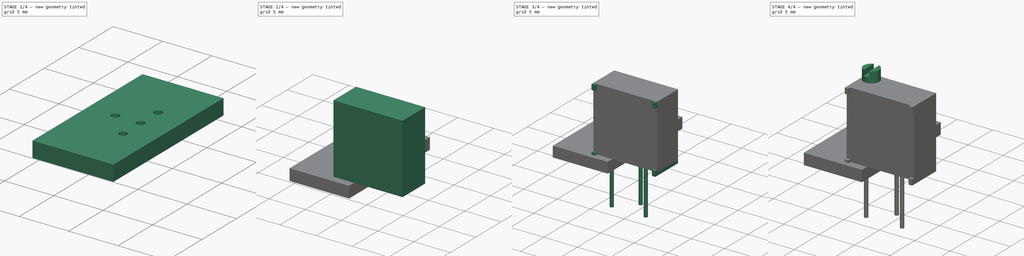
[diagram: build sequence overview — one tinted view per stage of 4, left to right]
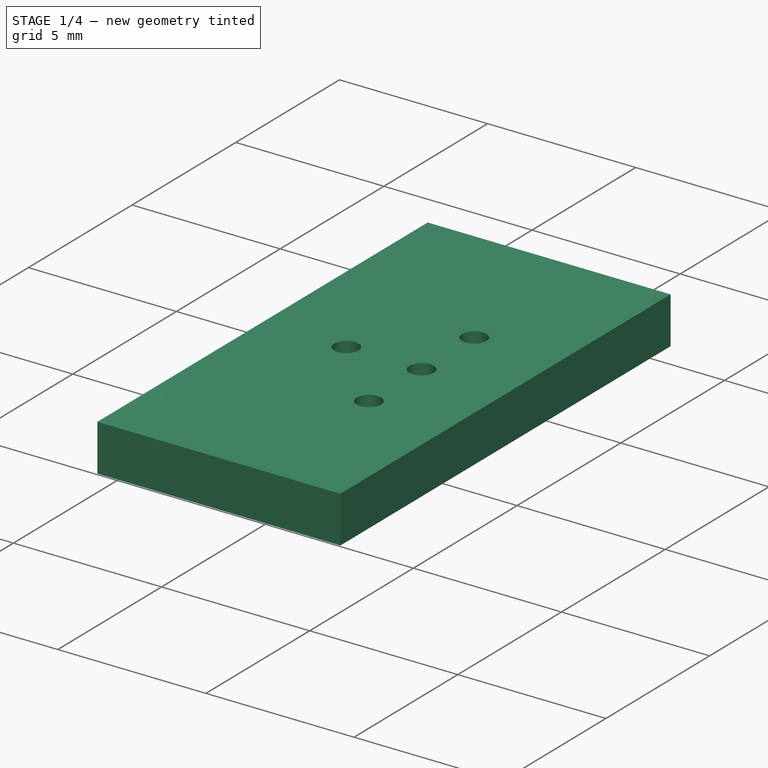
[diagram: stage 1 of 4 — iso view after this stage's code; geometry added in this stage tinted green]
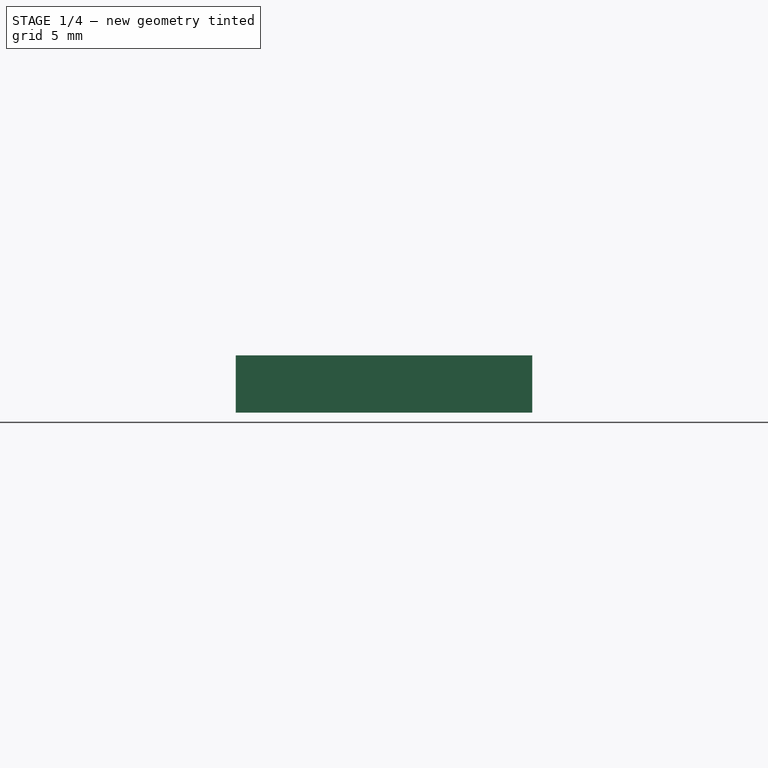
[diagram: stage 1 of 4 — front view after this stage's code; geometry added in this stage tinted green]
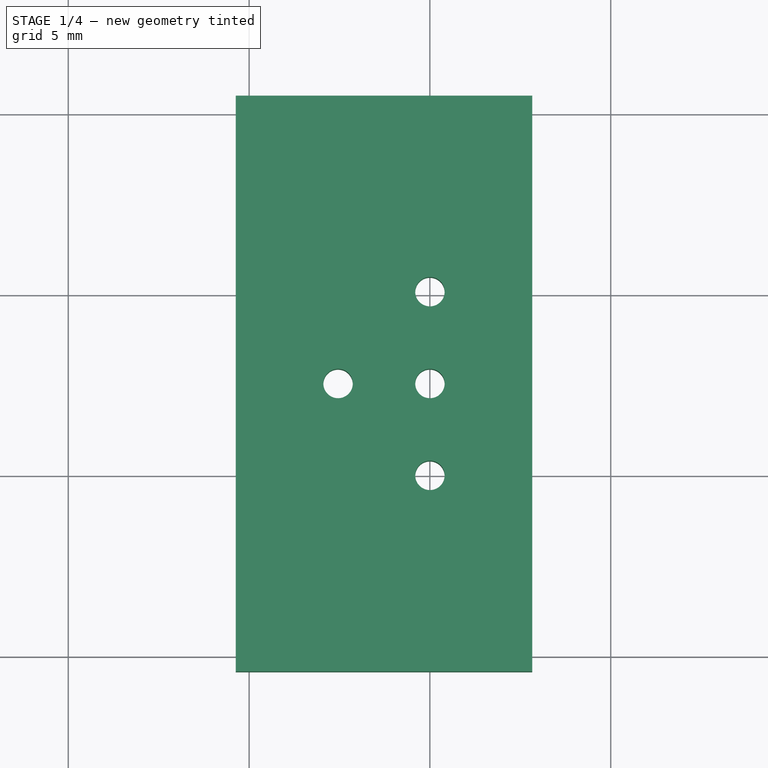
[diagram: stage 1 of 4 — top view after this stage's code; geometry added in this stage tinted green]
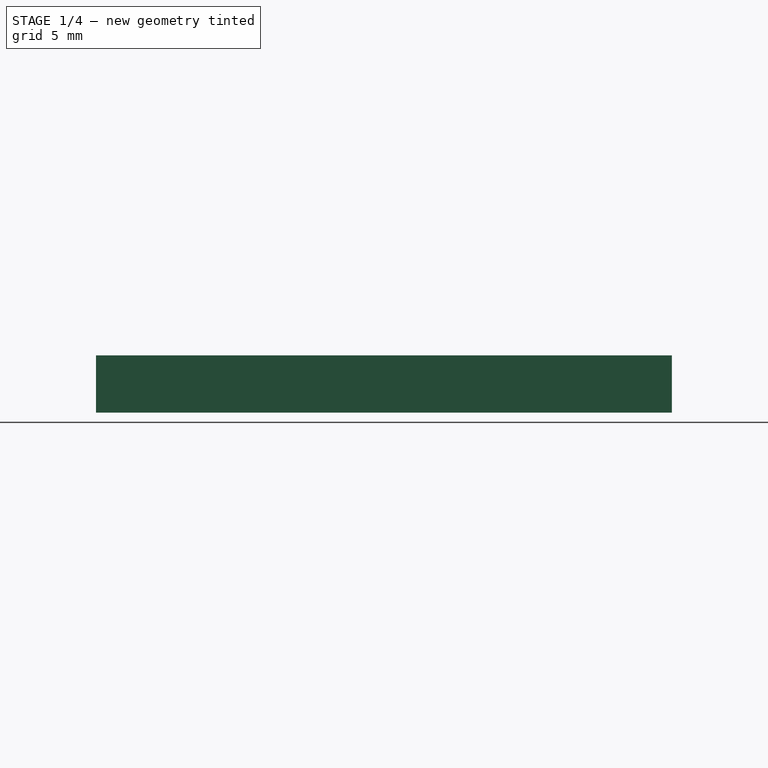
[diagram: stage 1 of 4 — right view after this stage's code; geometry added in this stage tinted green]
FCSTD DOCUMENT  (FreeCAD 0.17R13522 (Git))
Label: BOURNS-3296Y_color_ksu
License: All rights reserved
LicenseURL: http://fr.wikipedia.org/wiki/<copyright redacted>
objects: Sketcher::SketchObject×5, Part::FeaturePython×5, PartDesign::Pad×4, PartDesign::Body×2, PartDesign::Pocket×1, Part::MultiFuse×1, App::DocumentObjectGroup×1, Part::Feature×1
note: 24 computed .brp shape members not serialized (recipe doc carries the construction recipe); baked Part::Feature solids carry a one-line shape summary decoded from their .brp

FEATURE [Part::FeaturePython] THPs  label="PTHs"  # a2plus imported part (geometry in sourceFile) (typed FeaturePython)
  Placement = pos=(0,0,0) rot=(0,0,1;3.14159rad)
  fixedPosition = true
FEATURE [Part::FeaturePython] newPCB  label="Pcb"  # a2plus imported part (geometry in sourceFile) (typed FeaturePython)
  Placement = pos=(0,0,0) rot=(0,0,1;3.14159rad)
  fixedPosition = true
FEATURE [App::DocumentObjectGroup] RVAR_BOURNS_3296Y_fp
  Group = -> [Filk_lines,TopPads,BotPads,THPs,newPCB]
FEATURE [Part::Feature] Shape001  label="Clone"
  shape: bbox 4.83 x 9.53 x 17.91 mm, 51 faces, 2 solids (baked)
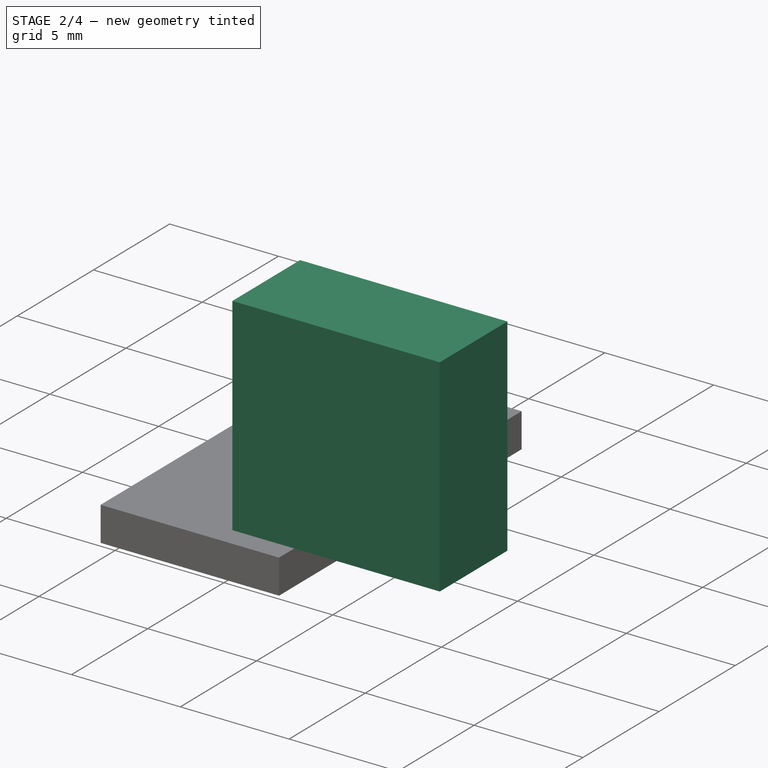
[diagram: stage 2 of 4 — iso view after this stage's code; geometry added in this stage tinted green]
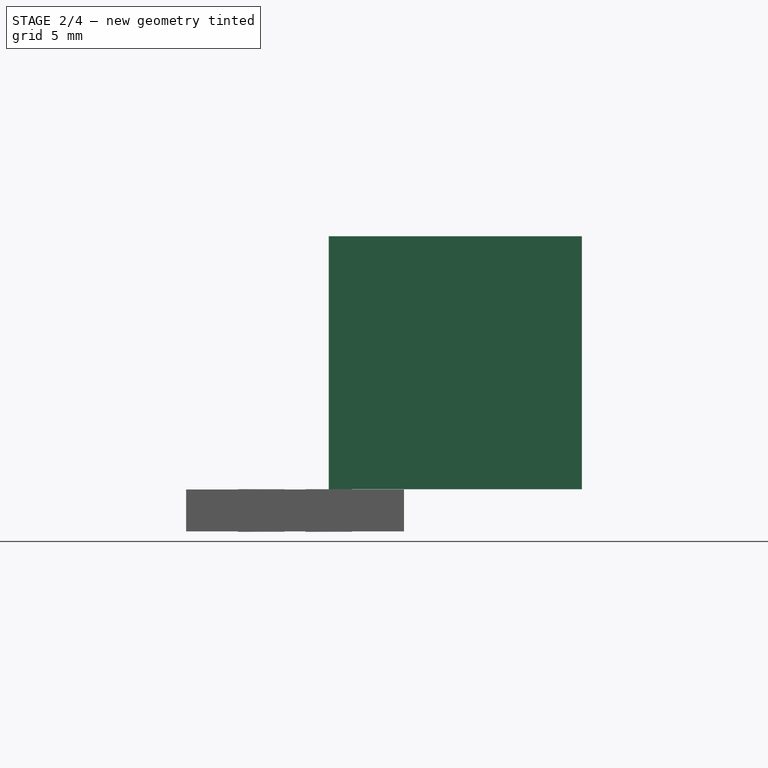
[diagram: stage 2 of 4 — front view after this stage's code; geometry added in this stage tinted green]
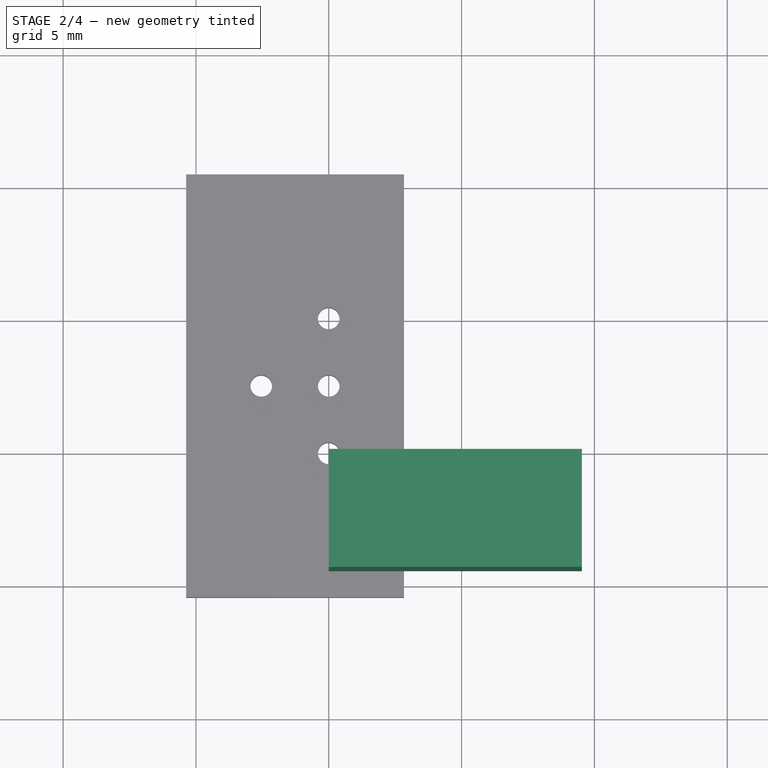
[diagram: stage 2 of 4 — top view after this stage's code; geometry added in this stage tinted green]
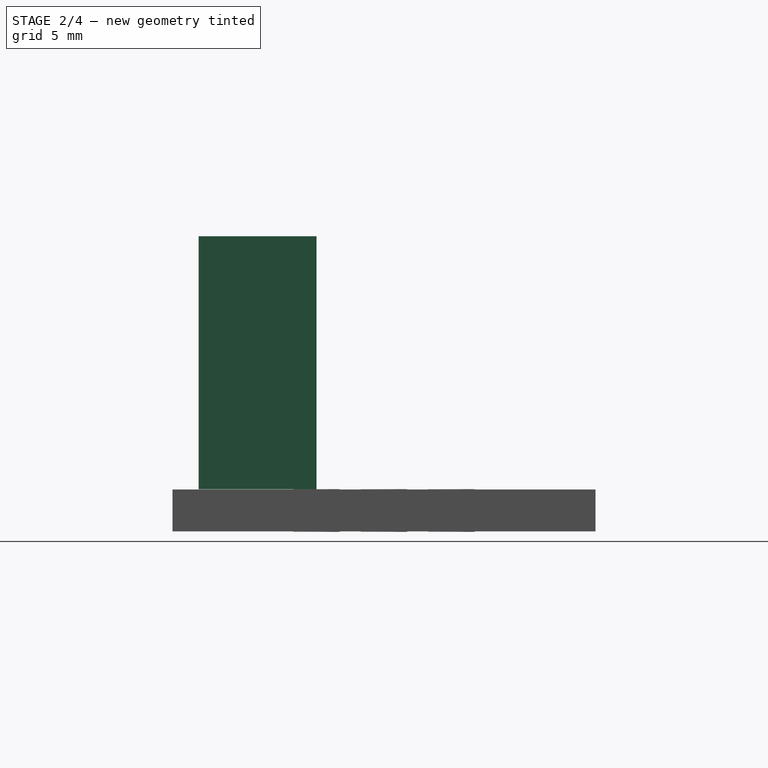
[diagram: stage 2 of 4 — right view after this stage's code; geometry added in this stage tinted green]
FEATURE [Sketcher::SketchObject] Sketch
  MapMode = 5
  Placement = pos=(0,0,0) rot=(1,0,0;1.5708rad)
  Support = -> [XZ_Plane]
  sketch-geometry (4):
    g0: LineSegment StartX=0 StartY=0 StartZ=0 EndX=9.53 EndY=0 EndZ=0
    g1: LineSegment StartX=9.53 StartY=0 StartZ=0 EndX=9.53 EndY=9.52 EndZ=0
    g2: LineSegment StartX=9.53 StartY=9.52 StartZ=0 EndX=0 EndY=9.52 EndZ=0
    g3: LineSegment StartX=0 StartY=9.52 StartZ=0 EndX=0 EndY=0 EndZ=0
  constraints (11):
    c: Coincident(g0,g1)
    c: Coincident(g1,g2)
    c: Coincident(g2,g3)
    c: Coincident(g3,g0)
    c: Horizontal(g0)
    c: Horizontal(g2)
    c: Vertical(g1)
    c: Vertical(g3)
    c: Coincident(g0,g-1)
    c: DistanceX(g2,g2) = 9.53
    c: DistanceY(g3,g3) = 9.52
FEATURE [PartDesign::Pad] Pad
  Length = 4.44
  Length2 = 100
  Placement = pos=(0,0,0) rot=(1,0,0;1.5708rad)
  Profile = -> Sketch
  Type = 0
FEATURE [Part::FeaturePython] Filk_lines  label="FrontSilk"  # a2plus imported part (geometry in sourceFile) (typed FeaturePython)
  Placement = pos=(0,0,0) rot=(0,0,1;3.14159rad)
  fixedPosition = true
FEATURE [Part::FeaturePython] TopPads  # a2plus imported part (geometry in sourceFile) (typed FeaturePython)
  Placement = pos=(0,0,0) rot=(0,0,1;3.14159rad)
  fixedPosition = true
FEATURE [Part::FeaturePython] BotPads  # a2plus imported part (geometry in sourceFile) (typed FeaturePython)
  Placement = pos=(0,0,0) rot=(0,0,1;3.14159rad)
  fixedPosition = true
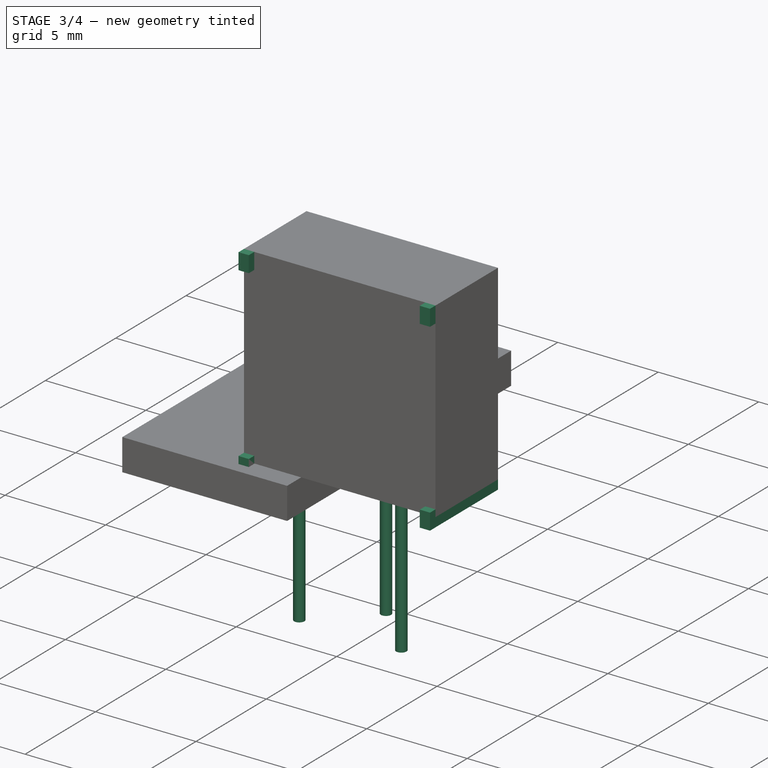
[diagram: stage 3 of 4 — iso view after this stage's code; geometry added in this stage tinted green]
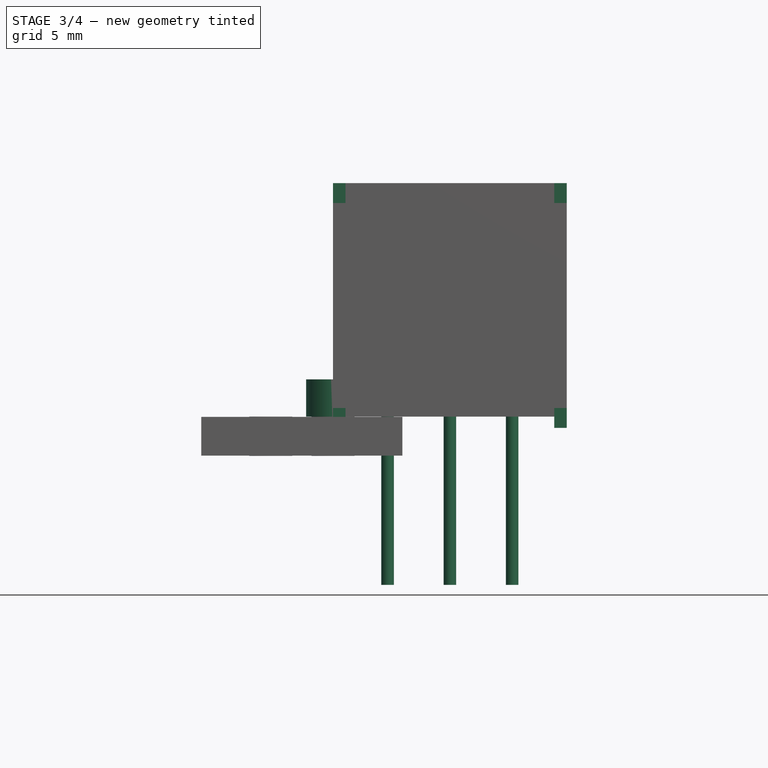
[diagram: stage 3 of 4 — front view after this stage's code; geometry added in this stage tinted green]
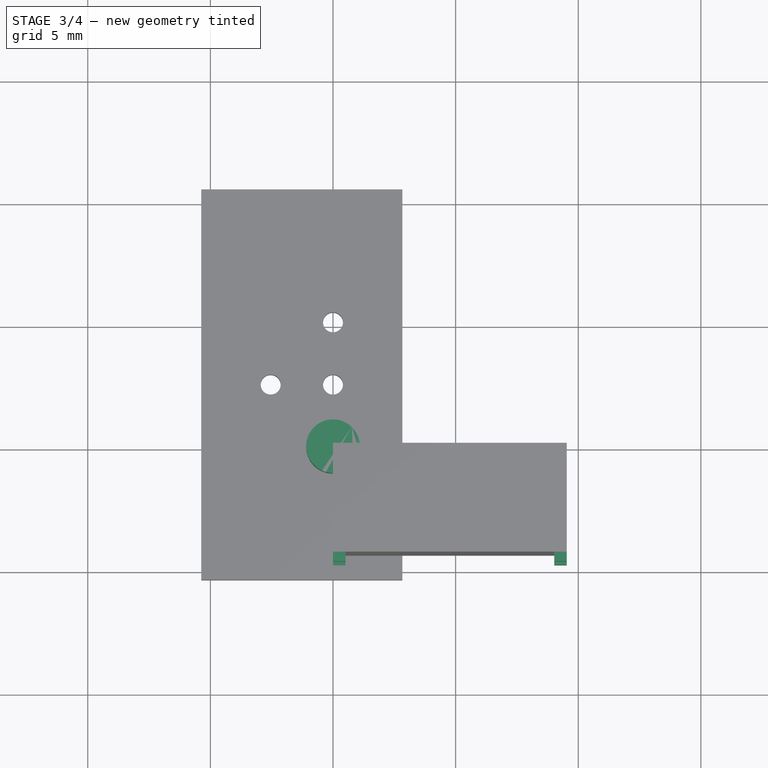
[diagram: stage 3 of 4 — top view after this stage's code; geometry added in this stage tinted green]
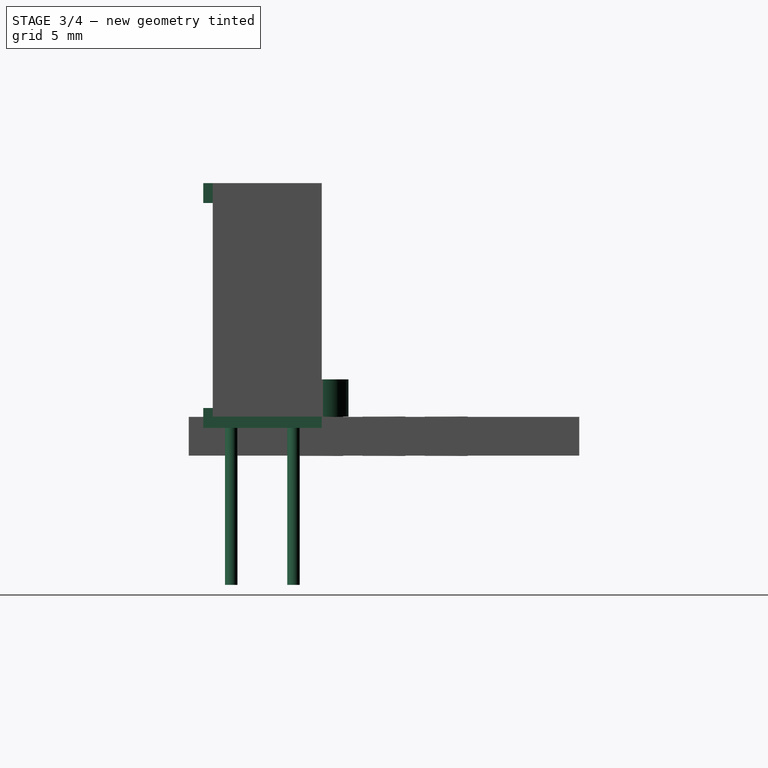
[diagram: stage 3 of 4 — right view after this stage's code; geometry added in this stage tinted green]
FEATURE [Sketcher::SketchObject] Sketch001
  MapMode = 5
  Placement = pos=(0,0,0) rot=(1,0,0;1.5708rad)
  Support = -> [XZ_Plane]
  sketch-geometry (16):
    g0: LineSegment StartX=0 StartY=9.52 StartZ=0 EndX=0.51 EndY=9.52 EndZ=0
    g1: LineSegment StartX=0.51 StartY=9.52 StartZ=0 EndX=0.51 EndY=8.71 EndZ=0
    g2: LineSegment StartX=0.51 StartY=8.71 StartZ=0 EndX=0 EndY=8.71 EndZ=0
    g3: LineSegment StartX=0 StartY=8.71 StartZ=0 EndX=0 EndY=9.52 EndZ=0
    g4: LineSegment StartX=9.02 StartY=9.52 StartZ=0 EndX=9.53 EndY=9.52 EndZ=0
    g5: LineSegment StartX=9.53 StartY=9.52 StartZ=0 EndX=9.53 EndY=8.71 EndZ=0
    g6: LineSegment StartX=9.53 StartY=8.71 StartZ=0 EndX=9.02 EndY=8.71 EndZ=0
    g7: LineSegment StartX=9.02 StartY=8.71 StartZ=0 EndX=9.02 EndY=9.52 EndZ=0
    g8: LineSegment StartX=9.02 StartY=0.35 StartZ=0 EndX=9.53 EndY=0.35 EndZ=0
    g9: LineSegment StartX=9.53 StartY=0.35 StartZ=0 EndX=9.53 EndY=-0.46 EndZ=0
    g10: LineSegment StartX=9.53 StartY=-0.46 StartZ=0 EndX=9.02 EndY=-0.46 EndZ=0
    g11: LineSegment StartX=9.02 StartY=-0.46 StartZ=0 EndX=9.02 EndY=0.35 EndZ=0
    g12: LineSegment StartX=0 StartY=0.35 StartZ=0 EndX=0.51 EndY=0.35 EndZ=0
    g13: LineSegment StartX=0.51 StartY=0.35 StartZ=0 EndX=0.51 EndY=-0.46 EndZ=0
    g14: LineSegment StartX=0.51 StartY=-0.46 StartZ=0 EndX=0 EndY=-0.46 EndZ=0
    g15: LineSegment StartX=0 StartY=-0.46 StartZ=0 EndX=0 EndY=0.35 EndZ=0
  constraints (48):
    c: Coincident(g0,g1)
    c: Coincident(g1,g2)
    c: Coincident(g2,g3)
    c: Coincident(g3,g0)
    c: Horizontal(g0)
    c: Horizontal(g2)
    c: Vertical(g1)
    c: Vertical(g3)
    c: Coincident(g4,g5)
    c: Coincident(g5,g6)
    c: Coincident(g6,g7)
    c: Coincident(g7,g4)
    c: Horizontal(g4)
    c: Horizontal(g6)
    c: Vertical(g5)
    c: Vertical(g7)
    c: Coincident(g8,g9)
    c: Coincident(g9,g10)
    c: Coincident(g10,g11)
    c: Coincident(g11,g8)
    c: Horizontal(g8)
    c: Horizontal(g10)
    c: Vertical(g9)
    c: Vertical(g11)
    c: Coincident(g12,g13)
    c: Coincident(g13,g14)
    c: Coincident(g14,g15)
    c: Coincident(g15,g12)
    c: Horizontal(g12)
    c: Horizontal(g14)
    c: Vertical(g13)
    c: Vertical(g15)
    c: DistanceY(g15,g15) = 0.81
    c: DistanceX(g14,g14) = 0.51
    c: PointOnObject(g12,g-2)
    c: DistanceY(g13,g-1) = 0.46
    c: Tangent(g10,g14) = -1.5708
    c: Tangent(g8,g12) = -1.5708
    c: DistanceX(g14,g9) = 9.53
    c: Equal(g10,g14)
    c: PointOnObject(g2,g-2)
    c: DistanceY(g1,g1) = 0.81
    c: Tangent(g1,g13) = -1.5708
    c: DistanceY(g-1,g0) = 9.52
    c: Equal(g6,g10)
    c: Equal(g1,g7)
    c: Tangent(g4,g0) = -1.5708
    c: Tangent(g5,g9) = -1.5708
FEATURE [PartDesign::Pad] Pad001
  BaseFeature = -> Pad
  Length = 4.83
  Length2 = 100
  Placement = pos=(0,0,0) rot=(1,0,0;1.5708rad)
  Profile = -> Sketch001
  Type = 0
FEATURE [Sketcher::SketchObject] Sketch002
  MapMode = 5
  Support = -> [XY_Plane001]
  expr: Constraints[1] = 2.1899999999999999 / 2
  sketch-geometry (1):
    g0: Circle CenterX=0 CenterY=0 CenterZ=0 NormalX=0 NormalY=0 NormalZ=1 AngleXU=0 Radius=1.095
  constraints (2):
    c: Coincident(g0,g-1)
    c: Radius(g0) = 1.095
FEATURE [PartDesign::Pad] Pad002
  Length = 1.52
  Length2 = 100
  Profile = -> Sketch002
  Type = 0
FEATURE [PartDesign::Body] Body001
  Group = -> [Sketch002,Pad002,Sketch003,Pocket]
  Origin = -> Origin001
  Placement = pos=(1.27,-1.27,9.53) rot=(0,0,1;1.5708rad)
  Tip = -> Pocket
FEATURE [Sketcher::SketchObject] Sketch004
  MapMode = 5
  Placement = pos=(0,0,0) rot=(1,0,0;3.14159rad)
  Support = -> [Pad001]
  expr: Constraints[6] = 0.51000000000000001 / 2
  expr: Constraints[5] = 9.5299999999999994 / 2
  expr: Constraints[0] = 4.8300000000000001 - 1.1400000000000001
  sketch-geometry (3):
    g0: Circle CenterX=2.225 CenterY=3.69 CenterZ=0 NormalX=0 NormalY=0 NormalZ=1 AngleXU=0 Radius=0.255
    g1: Circle CenterX=4.765 CenterY=1.15 CenterZ=0 NormalX=0 NormalY=0 NormalZ=1 AngleXU=0 Radius=0.255
    g2: Circle CenterX=7.305 CenterY=3.69 CenterZ=0 NormalX=0 NormalY=0 NormalZ=1 AngleXU=0 Radius=0.255
  constraints (9):
    c: DistanceY(g-1,g0) = 3.69
    c: DistanceY(g0,g1) = -2.54
    c: DistanceY(g0,g2) = 0
    c: DistanceX(g0,g1) = 2.54
    c: DistanceX(g1,g2) = 2.54
    c: DistanceX(g-1,g1) = 4.765
    c: Radius(g0) = 0.255
    c: Equal(g1,g0)
    c: Equal(g2,g0)
FEATURE [PartDesign::Pad] Pad003
  BaseFeature = -> Pad001
  Length = 6.86
  Length2 = 100
  Placement = pos=(0,0,0) rot=(1,0,0;1.5708rad)
  Profile = -> Sketch004
  Type = 0
  expr: Length = 6.4000000000000004 + 0.46000000000000002
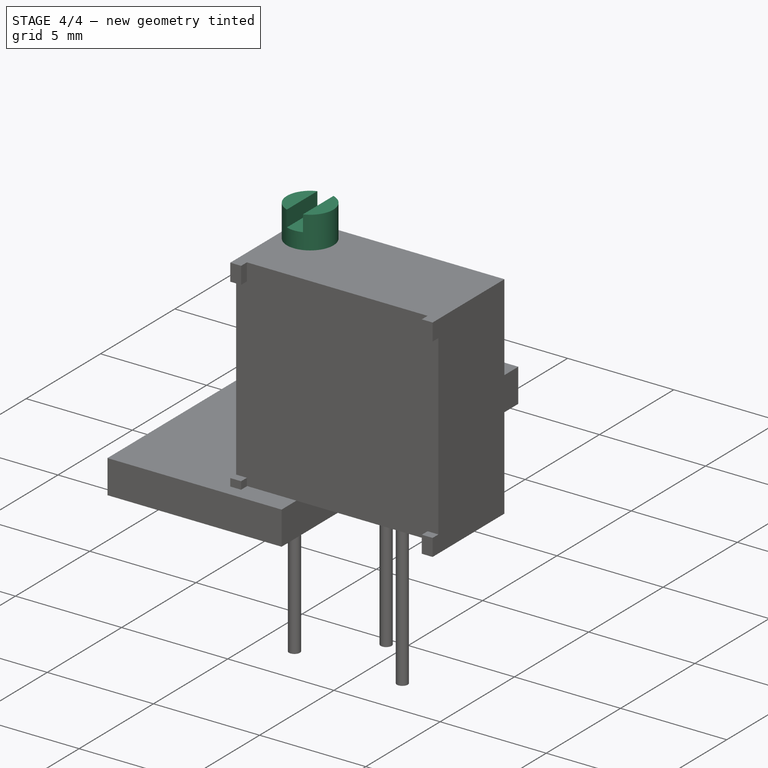
[diagram: stage 4 of 4 — iso view after this stage's code; geometry added in this stage tinted green]
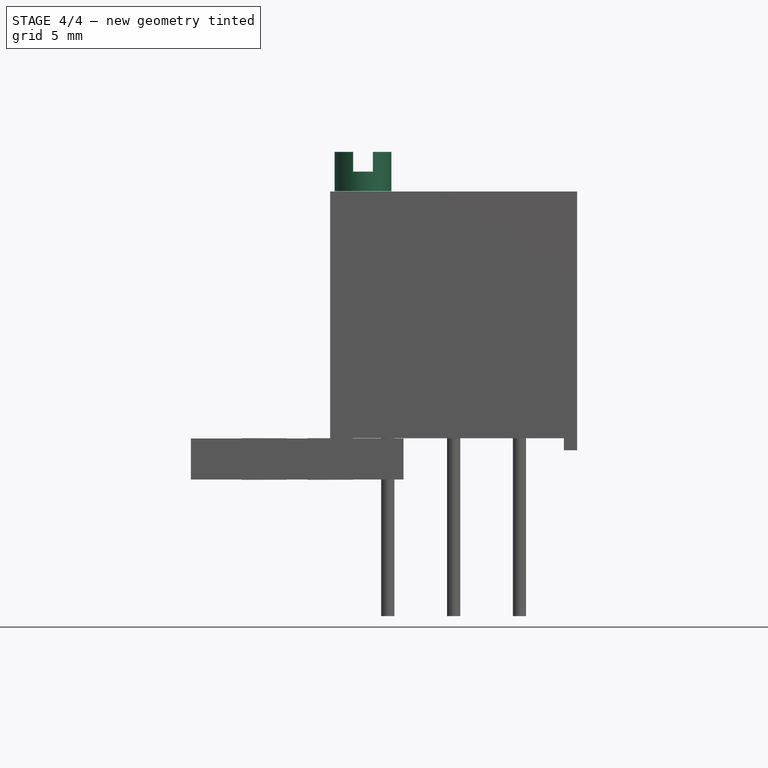
[diagram: stage 4 of 4 — front view after this stage's code; geometry added in this stage tinted green]
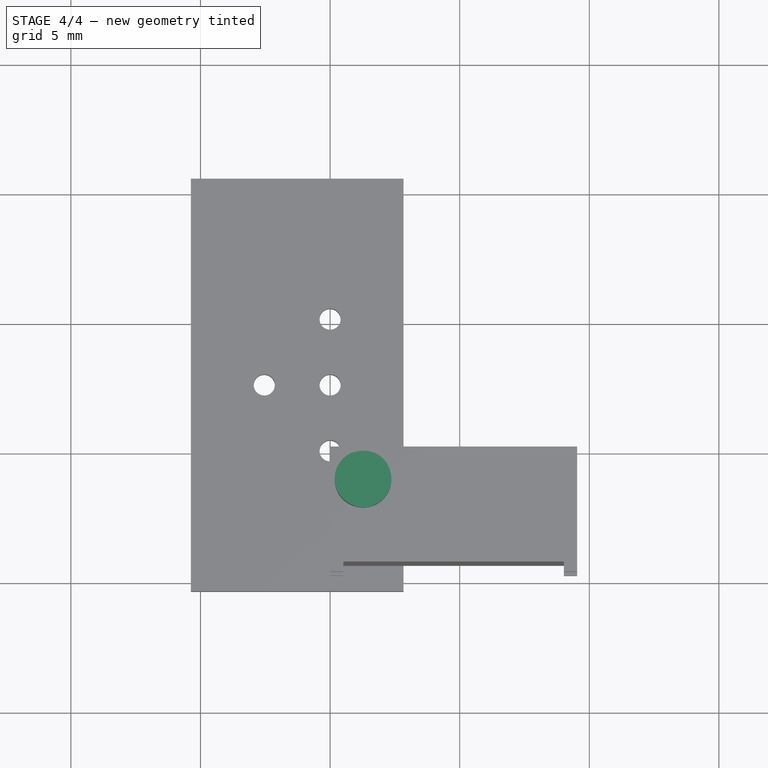
[diagram: stage 4 of 4 — top view after this stage's code; geometry added in this stage tinted green]
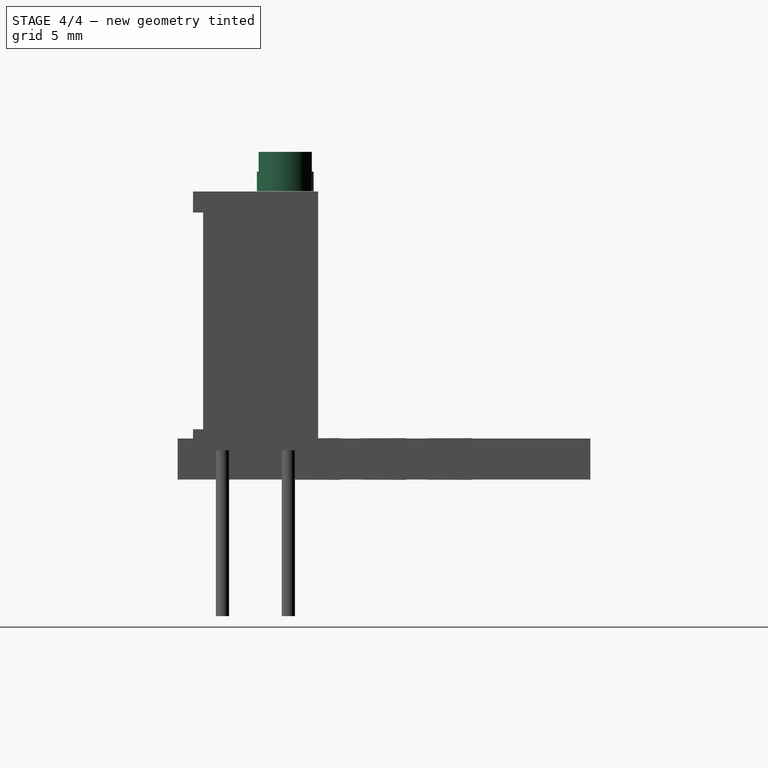
[diagram: stage 4 of 4 — right view after this stage's code; geometry added in this stage tinted green]
FEATURE [Sketcher::SketchObject] Sketch003
  MapMode = 5
  Placement = pos=(0,0,1.52) rot=(0,0,1;0rad)
  Support = -> [Pad002]
  sketch-geometry (4):
    g0: LineSegment StartX=-1.5 StartY=0.38 StartZ=0 EndX=1.5 EndY=0.38 EndZ=0
    g1: LineSegment StartX=1.5 StartY=0.38 StartZ=0 EndX=1.5 EndY=-0.38 EndZ=0
    g2: LineSegment StartX=1.5 StartY=-0.38 StartZ=0 EndX=-1.5 EndY=-0.38 EndZ=0
    g3: LineSegment StartX=-1.5 StartY=-0.38 StartZ=0 EndX=-1.5 EndY=0.38 EndZ=0
  constraints (12):
    c: Coincident(g0,g1)
    c: Coincident(g1,g2)
    c: Coincident(g2,g3)
    c: Coincident(g3,g0)
    c: Horizontal(g0)
    c: Horizontal(g2)
    c: Vertical(g1)
    c: Vertical(g3)
    c: DistanceY(g1,g1) = 0.76
    c: Symmetric(g0,g1,g-1)
    c: Symmetric(g0,g0,g-2)
    c: DistanceX(g0,g0) = 3
FEATURE [PartDesign::Pocket] Pocket
  BaseFeature = -> Pad002
  Length = 0.76
  Length2 = 100
  Profile = -> Sketch003
  Type = 0
FEATURE [PartDesign::Body] Body
  Group = -> [Sketch,Pad,Sketch001,Pad001,Sketch004,Pad003]
  Origin = -> Origin
  Tip = -> Pad003
FEATURE [Part::MultiFuse] Fusion
  Shapes = -> [Body,Body001]
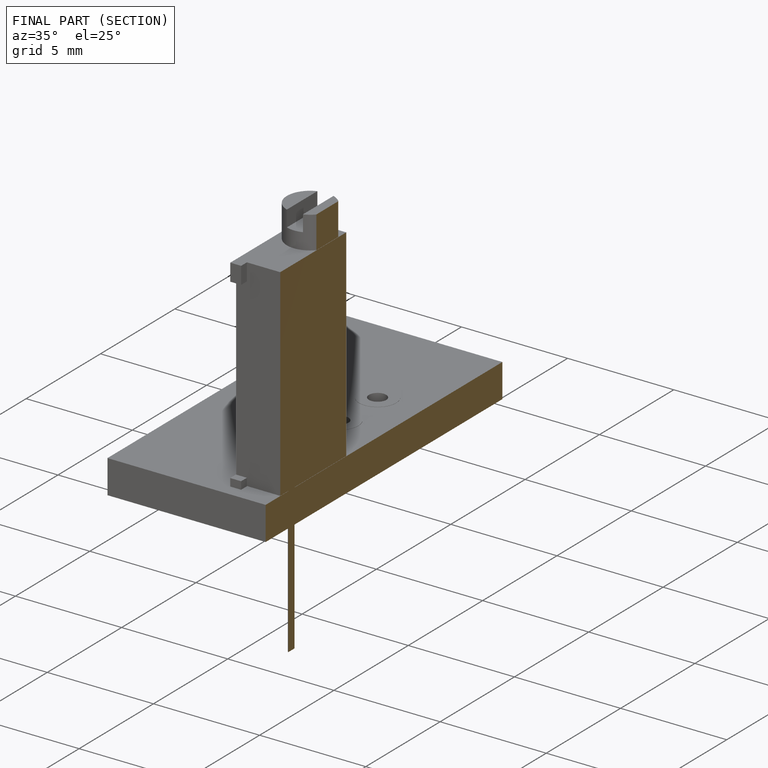
[diagram: finished part — half-section view (interior)]
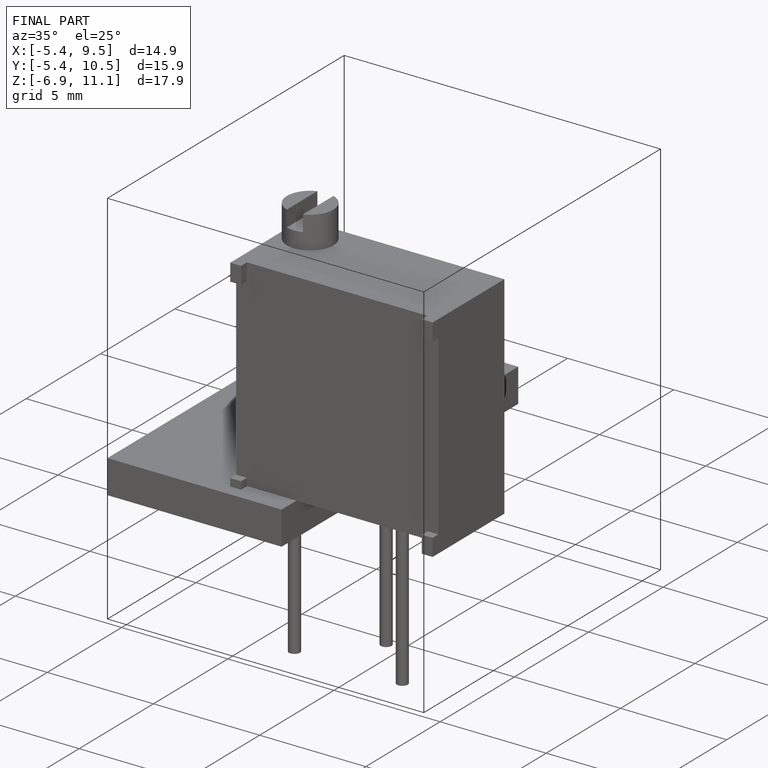
[diagram: finished part — iso view with bounding-box wireframe]
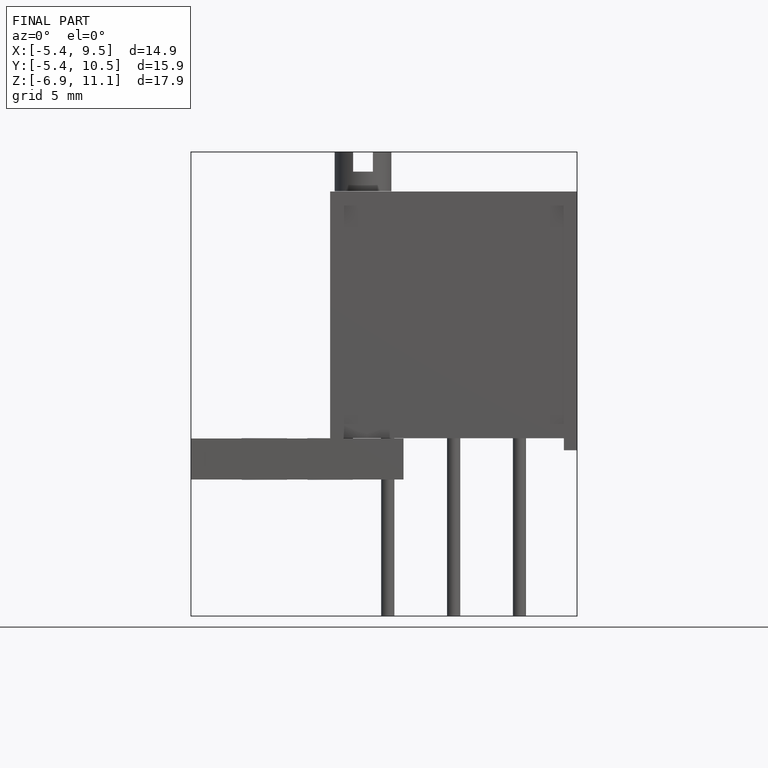
[diagram: finished part — front view with bounding-box wireframe]
